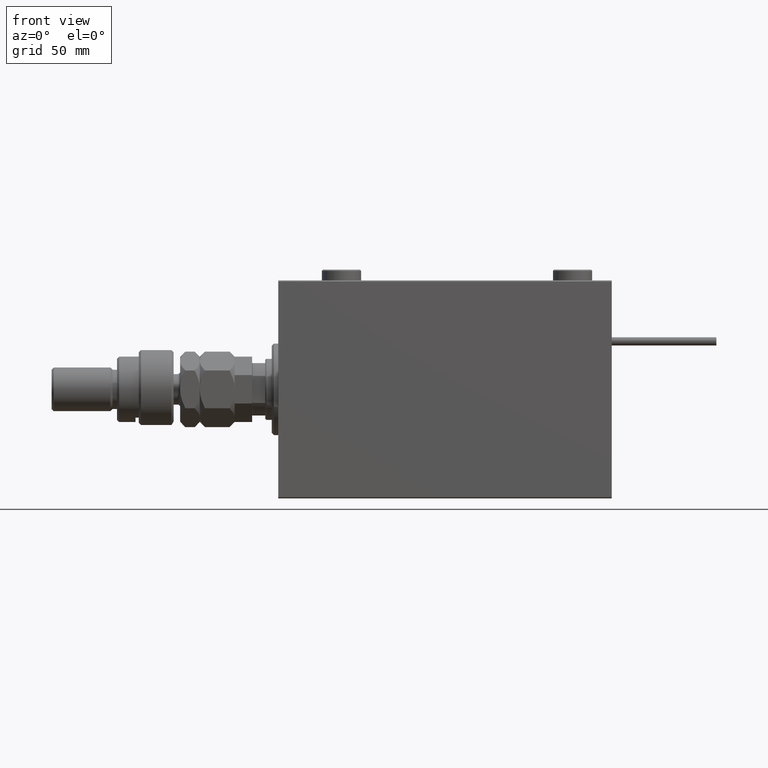
[diagram: clean part render]
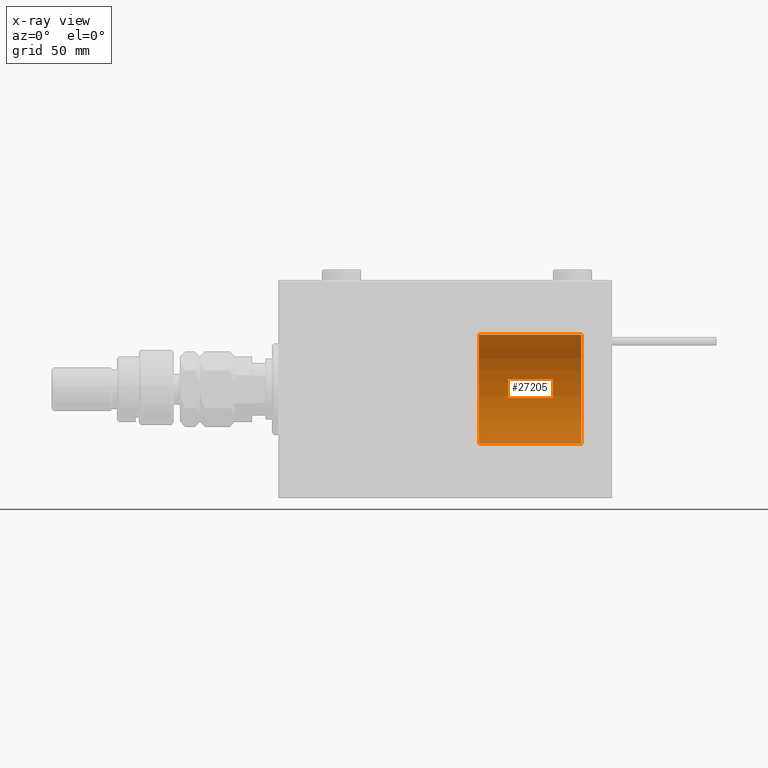
[diagram: x-ray — body ghosted, one internal face saturated and labeled with its STEP entity id]
A machine part, front view, then the same camera in x-ray: the body is ghosted and one INTERNAL B-rep face — a face not visible from any outside direction — is saturated and labeled: STEP entity #27205.
In plain terms, the highlighted cylindrical surface (partial cylindrical patch) has radius 25 mm, axis along (1, -0, -0).
Its self-contained STEP definition (entity closure, byte-faithful):
#510 = EDGE_CURVE ( 'NONE', #31756, #24392, #36381, .T. ) ;
#1011 = ORIENTED_EDGE ( 'NONE', *, *, #510, .T. ) ;
#2391 = AXIS2_PLACEMENT_3D ( 'NONE', #34195, #42201, #8862 ) ;
#6389 = ORIENTED_EDGE ( 'NONE', *, *, #11621, .T. ) ;
#8247 = EDGE_CURVE ( 'NONE', #9390, #30239, #18356, .T. ) ;
#8246 = ORIENTED_EDGE ( 'NONE', *, *, #8247, .F. ) ;
#8259 = EDGE_LOOP ( 'NONE', ( #21337, #1011, #6389, #8246 ) ) ;
#8862 = DIRECTION ( 'NONE',  ( 1.000000000000000000, 0.000000000000000000, 0.000000000000000000 ) ) ;
#9390 = VERTEX_POINT ( 'NONE', #13792 ) ;
#10166 = FACE_OUTER_BOUND ( 'NONE', #8259, .T. ) ;
#11621 = EDGE_CURVE ( 'NONE', #24392, #30239, #48381, .T. ) ;
#12414 = CARTESIAN_POINT ( 'NONE',  ( -25.00000000000000000, 0.000000000000000000, 0.000000000000000000 ) ) ;
#13792 = CARTESIAN_POINT ( 'NONE',  ( -25.00000000000000000, 0.000000000000000000, 47.00000000000000000 ) ) ;
#14077 = AXIS2_PLACEMENT_3D ( 'NONE', #49203, #48104, #39835 ) ;
#14214 = DIRECTION ( 'NONE',  ( -0.000000000000000000, -0.000000000000000000, -1.000000000000000000 ) ) ;
#18356 = LINE ( 'NONE', #47839, #31502 ) ;
#21337 = ORIENTED_EDGE ( 'NONE', *, *, #23060, .F. ) ;
#23060 = EDGE_CURVE ( 'NONE', #31756, #9390, #49920, .T. ) ;
#24392 = VERTEX_POINT ( 'NONE', #54354 ) ;
#26732 = CYLINDRICAL_SURFACE ( 'NONE', #33230, 25.00000000000000000 ) ;
#27205 = ADVANCED_FACE ( 'NONE', ( #10166 ), #26732, .T. ) ;
#30239 = VERTEX_POINT ( 'NONE', #12414 ) ;
#30847 = CARTESIAN_POINT ( 'NONE',  ( 0.000000000000000000, 0.000000000000000000, 47.00000000000000000 ) ) ;
#31502 = VECTOR ( 'NONE', #14214, 1000.000000000000000 ) ;
#31756 = VERTEX_POINT ( 'NONE', #47587 ) ;
#31999 = DIRECTION ( 'NONE',  ( -0.000000000000000000, -0.000000000000000000, -1.000000000000000000 ) ) ;
#33230 = AXIS2_PLACEMENT_3D ( 'NONE', #30847, #47662, #42446 ) ;
#34195 = CARTESIAN_POINT ( 'NONE',  ( 0.000000000000000000, 0.000000000000000000, 47.00000000000000000 ) ) ;
#36381 = LINE ( 'NONE', #44928, #52486 ) ;
#39835 = DIRECTION ( 'NONE',  ( 1.000000000000000000, 0.000000000000000000, 0.000000000000000000 ) ) ;
#42201 = DIRECTION ( 'NONE',  ( 0.000000000000000000, 0.000000000000000000, 1.000000000000000000 ) ) ;
#42446 = DIRECTION ( 'NONE',  ( -1.000000000000000000, 0.000000000000000000, 0.000000000000000000 ) ) ;
#44928 = CARTESIAN_POINT ( 'NONE',  ( 25.00000000000000000, 3.061616997868383043E-15, 47.00000000000000000 ) ) ;
#47587 = CARTESIAN_POINT ( 'NONE',  ( 25.00000000000000000, 3.061616997868383043E-15, 47.00000000000000000 ) ) ;
#47662 = DIRECTION ( 'NONE',  ( -0.000000000000000000, -0.000000000000000000, -1.000000000000000000 ) ) ;
#47839 = CARTESIAN_POINT ( 'NONE',  ( -25.00000000000000000, 0.000000000000000000, 47.00000000000000000 ) ) ;
#48104 = DIRECTION ( 'NONE',  ( 0.000000000000000000, 0.000000000000000000, 1.000000000000000000 ) ) ;
#48381 = CIRCLE ( 'NONE', #14077, 25.00000000000000000 ) ;
#49203 = CARTESIAN_POINT ( 'NONE',  ( 0.000000000000000000, 0.000000000000000000, 0.000000000000000000 ) ) ;
#49920 = CIRCLE ( 'NONE', #2391, 25.00000000000000000 ) ;
#52486 = VECTOR ( 'NONE', #31999, 1000.000000000000000 ) ;
#54354 = CARTESIAN_POINT ( 'NONE',  ( 25.00000000000000000, 3.061616997868383043E-15, 0.000000000000000000 ) ) ;